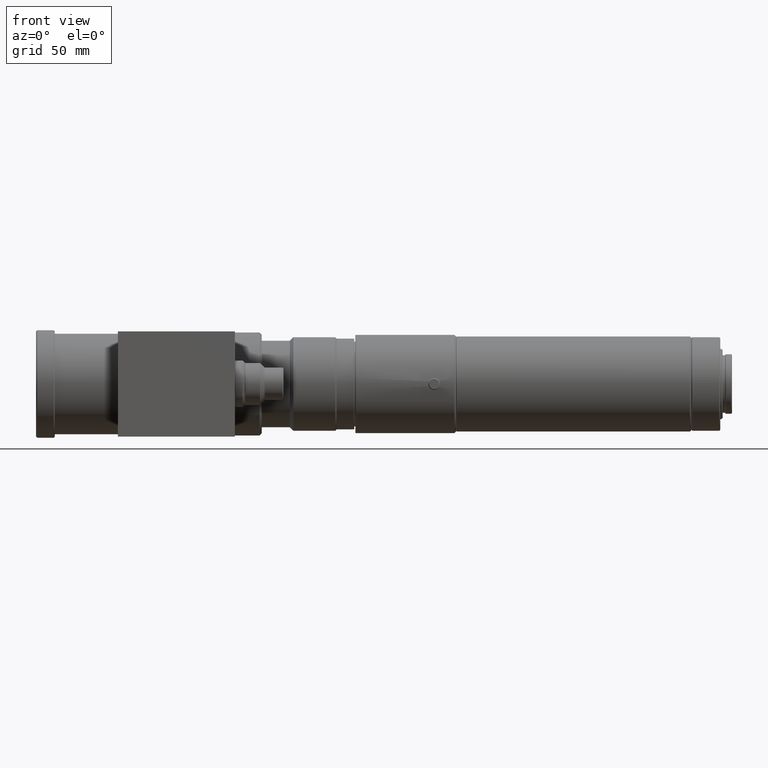
[diagram: clean part render]
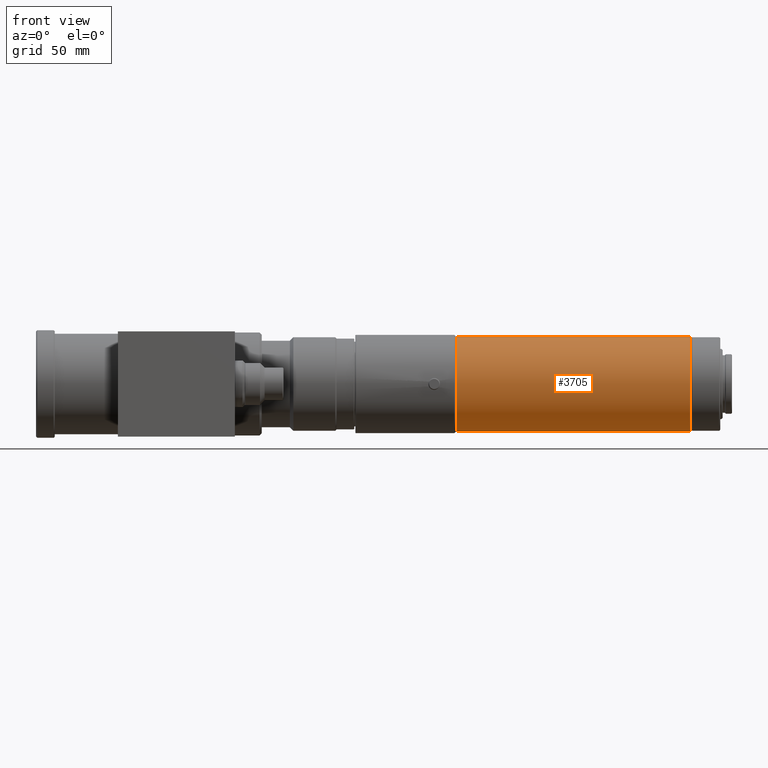
[diagram: same view with one face highlighted and labeled with its STEP entity id]
A machine part, front view. The second image highlights one B-rep face of the part: STEP entity #3705.
In plain terms, the highlighted cylindrical surface (partial cylindrical patch) has radius 20.32 mm, axis along (1, -0, -0).
Its self-contained STEP definition (entity closure, byte-faithful):
#161 = CARTESIAN_POINT ( 'NONE',  ( 279.6582620101893900, 0.0000000000000000000, 20.31999999999994300 ) ) ;
#189 = DIRECTION ( 'NONE',  ( 1.000000000000000000, -0.0000000000000000000, -0.0000000000000000000 ) ) ;
#220 = VERTEX_POINT ( 'NONE', #4421 ) ;
#396 = DIRECTION ( 'NONE',  ( 1.000000000000000000, -0.0000000000000000000, -0.0000000000000000000 ) ) ;
#637 = LINE ( 'NONE', #2517, #2892 ) ;
#806 = EDGE_LOOP ( 'NONE', ( #2064, #2133, #2039, #3112 ) ) ;
#881 = CARTESIAN_POINT ( 'NONE',  ( 179.9582620101893200, 0.0000000000000000000, 0.0000000000000000000 ) ) ;
#958 = FACE_OUTER_BOUND ( 'NONE', #806, .T. ) ;
#1326 = DIRECTION ( 'NONE',  ( 0.0000000000000000000, 0.0000000000000000000, -1.000000000000000000 ) ) ;
#1526 = CARTESIAN_POINT ( 'NONE',  ( 279.6582620101893900, 2.488482295867414600E-015, -20.31999999999994300 ) ) ;
#1650 = DIRECTION ( 'NONE',  ( 1.000000000000000000, -0.0000000000000000000, -0.0000000000000000000 ) ) ;
#2039 = ORIENTED_EDGE ( 'NONE', *, *, #5485, .T. ) ;
#2064 = ORIENTED_EDGE ( 'NONE', *, *, #3071, .F. ) ;
#2133 = ORIENTED_EDGE ( 'NONE', *, *, #3480, .T. ) ;
#2235 = VERTEX_POINT ( 'NONE', #5228 ) ;
#2464 = EDGE_CURVE ( 'NONE', #5208, #2974, #4754, .T. ) ;
#2517 = CARTESIAN_POINT ( 'NONE',  ( 291.8642620101889500, 2.488482295867414600E-015, 20.31999999999994300 ) ) ;
#2705 = AXIS2_PLACEMENT_3D ( 'NONE', #881, #3859, #1326 ) ;
#2732 = CARTESIAN_POINT ( 'NONE',  ( 291.8642620101889500, 0.0000000000000000000, 0.0000000000000000000 ) ) ;
#2756 = VECTOR ( 'NONE', #4018, 1000.000000000000000 ) ;
#2888 = AXIS2_PLACEMENT_3D ( 'NONE', #2732, #189, #3586 ) ;
#2892 = VECTOR ( 'NONE', #396, 1000.000000000000000 ) ;
#2974 = VERTEX_POINT ( 'NONE', #1526 ) ;
#3071 = EDGE_CURVE ( 'NONE', #2235, #5208, #637, .T. ) ;
#3112 = ORIENTED_EDGE ( 'NONE', *, *, #2464, .F. ) ;
#3444 = AXIS2_PLACEMENT_3D ( 'NONE', #4182, #1650, #4602 ) ;
#3480 = EDGE_CURVE ( 'NONE', #2235, #220, #5007, .T. ) ;
#3586 = DIRECTION ( 'NONE',  ( 0.0000000000000000000, 0.0000000000000000000, -1.000000000000000000 ) ) ;
#3705 = ADVANCED_FACE ( 'NONE', ( #958 ), #3947, .T. ) ;
#3859 = DIRECTION ( 'NONE',  ( 1.000000000000000000, -0.0000000000000000000, -0.0000000000000000000 ) ) ;
#3947 = CYLINDRICAL_SURFACE ( 'NONE', #2888, 20.31999999999994300 ) ;
#4018 = DIRECTION ( 'NONE',  ( 1.000000000000000000, -0.0000000000000000000, -0.0000000000000000000 ) ) ;
#4022 = LINE ( 'NONE', #4437, #2756 ) ;
#4182 = CARTESIAN_POINT ( 'NONE',  ( 279.6582620101893900, 0.0000000000000000000, 0.0000000000000000000 ) ) ;
#4421 = CARTESIAN_POINT ( 'NONE',  ( 179.9582620101893200, 0.0000000000000000000, -20.31999999999994300 ) ) ;
#4437 = CARTESIAN_POINT ( 'NONE',  ( 291.8642620101889500, 0.0000000000000000000, -20.31999999999994300 ) ) ;
#4602 = DIRECTION ( 'NONE',  ( 0.0000000000000000000, 0.0000000000000000000, -1.000000000000000000 ) ) ;
#4754 = CIRCLE ( 'NONE', #3444, 20.31999999999994300 ) ;
#5007 = CIRCLE ( 'NONE', #2705, 20.31999999999994300 ) ;
#5208 = VERTEX_POINT ( 'NONE', #161 ) ;
#5228 = CARTESIAN_POINT ( 'NONE',  ( 179.9582620101893200, 2.488482295867414600E-015, 20.31999999999994300 ) ) ;
#5485 = EDGE_CURVE ( 'NONE', #220, #2974, #4022, .T. ) ;